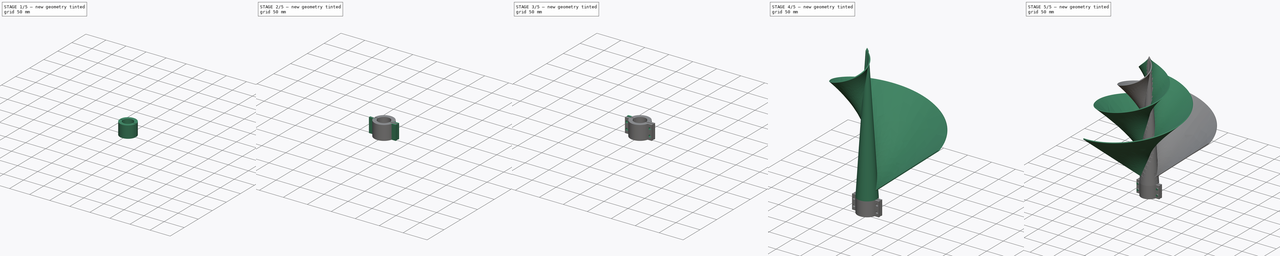
[diagram: build sequence overview — one tinted view per stage of 5, left to right]
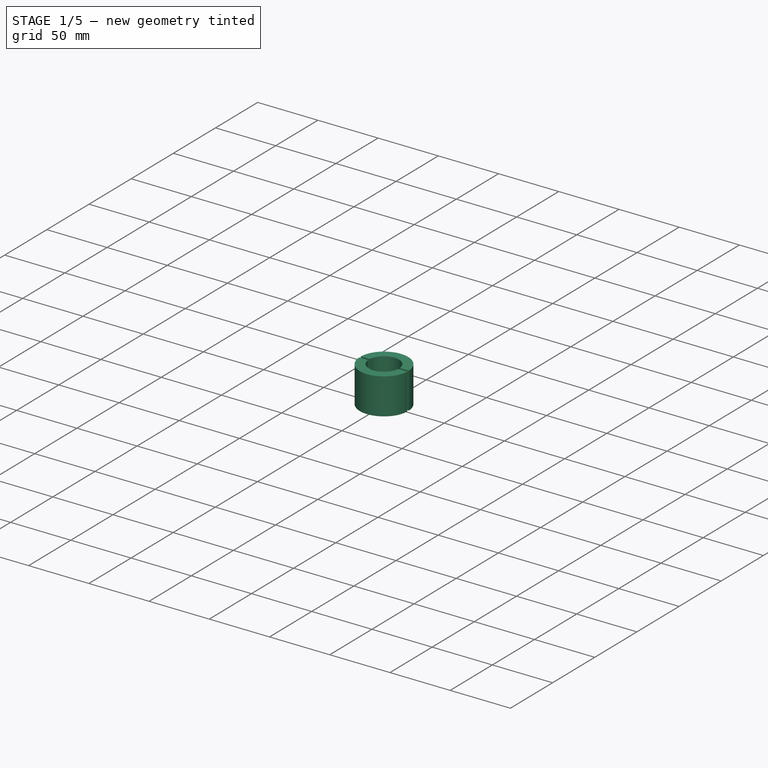
[diagram: stage 1 of 5 — iso view after this stage's code; geometry added in this stage tinted green]
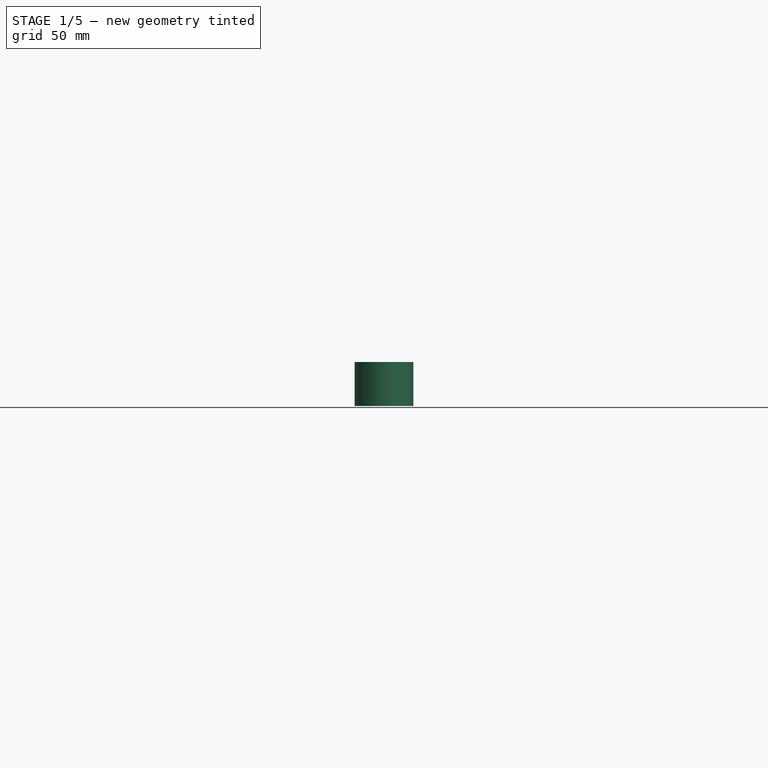
[diagram: stage 1 of 5 — front view after this stage's code; geometry added in this stage tinted green]
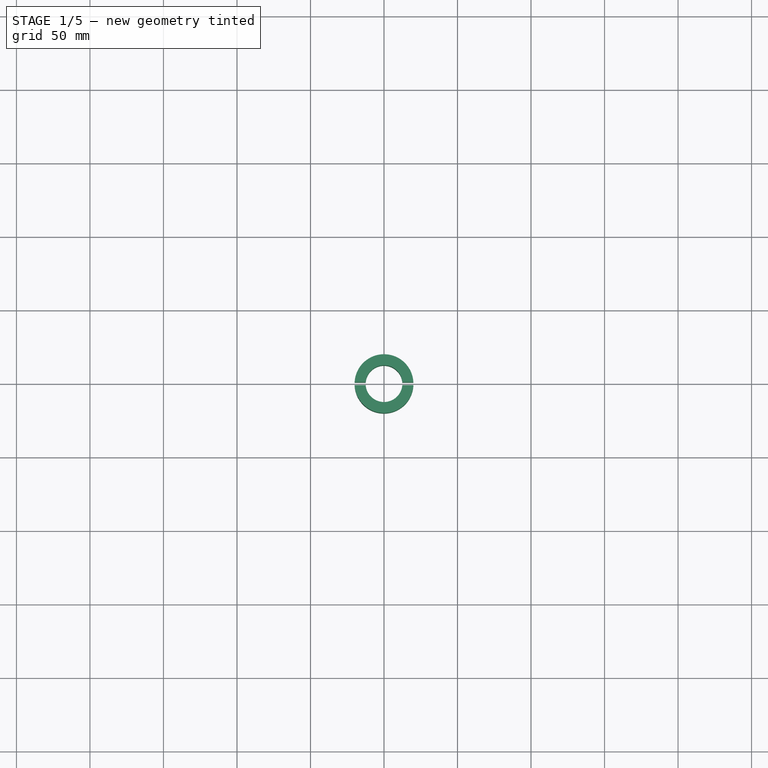
[diagram: stage 1 of 5 — top view after this stage's code; geometry added in this stage tinted green]
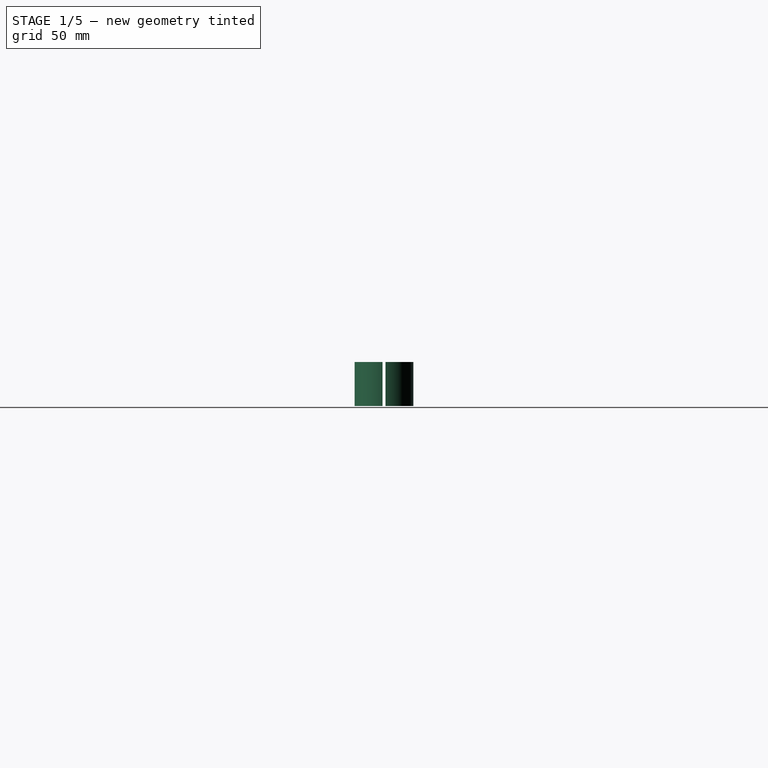
[diagram: stage 1 of 5 — right view after this stage's code; geometry added in this stage tinted green]
FCSTD DOCUMENT  (FreeCAD 0.20R29410 (Git))
Label: MODELO TURBINA FREECAD
License: All rights reserved
LicenseURL: http://en.wikipedia.org/wiki/All_rights_reserved
objects: Sketcher::SketchObject×8, Part::FeaturePython×5, Part::Extrusion×5, Part::RuledSurface×4, Part::Sweep×2, Part::Cut×2, Part::MultiFuse×2, Part::Helix×1, Part::Offset×1, Part::Fillet×1, Part::Face×1
note: 32 computed .brp shape members not serialized (recipe doc carries the construction recipe); baked Part::Feature solids carry a one-line shape summary decoded from their .brp

FEATURE [Part::FeaturePython] Tube  # WARN: FeaturePython — macro-defined, semantics opaque (R4)
  AttacherType = Attacher::AttachEngine3D
  Height = 30
  InnerRadius = 12.5
  OuterRadius = 20
  Placement = pos=(0,0,-155.86) rot=(0,0,1;0rad)
FEATURE [Sketcher::SketchObject] Sketch
  ExternalGeometry = -> [Tube]
  FullyConstrained = true
  Placement = pos=(0,0,-140.86) rot=(0,0,1;0rad)
  sketch-geometry (5):
    g0: LineSegment StartX=0 StartY=0 StartZ=0 EndX=0 EndY=-1 EndZ=0
    g1: LineSegment StartX=0 StartY=-1 StartZ=0 EndX=12 EndY=-1 EndZ=0
    g2: LineSegment StartX=12 StartY=-1 StartZ=0 EndX=20.5 EndY=-1 EndZ=0
    g3: LineSegment StartX=20.5 StartY=-1 StartZ=0 EndX=20.5 EndY=1 EndZ=0
    g4: LineSegment StartX=20.5 StartY=1 StartZ=0 EndX=12 EndY=1 EndZ=0
  constraints (15):
    c: Coincident(g0,g-4)
    c: Vertical(g0,g0)
    c: DistanceY(g0,g0) = 1
    c: Coincident(g1,g0)
    c: Horizontal(g1)
    c: DistanceX(g0,g1) = 12
    c: Coincident(g2,g1)
    c: Horizontal(g2)
    c: DistanceX(g1,g2) = 8.5
    c: Coincident(g3,g2)
    c: Vertical(g2,g3)
    c: DistanceY(g2,g3) = 2
    c: Coincident(g4,g3)
    c: Horizontal(g4)
    c: Vertical(g1,g4)
FEATURE [Part::RuledSurface] Ruled_Surface001
  Curve1 = -> Sketch [Edge5]
  Curve2 = -> Sketch [Edge3]
  Orientation = 0
FEATURE [Part::Extrusion] Extrude
  Base = -> Ruled_Surface001
  Dir = (0,0,1)
  DirMode = 0
  FaceMakerClass = Part::FaceMakerBullseye
  LengthFwd = 30
  LengthRev = 0
  Solid = true
  Symmetric = true
FEATURE [Part::FeaturePython] Array003  # Draft array (typed FeaturePython)
  AlwaysSyncPlacement = false
  Angle = 360
  ArrayType = 1
  Axis = (0,0,1)
  Base = -> Extrude
  Center = (0,0,0)
  Count = 2
  ExpandArray = false
  Fuse = true
  IntervalAxis = (0,0,0)
  IntervalX = (50,0,0)
  IntervalY = (0,50,0)
  IntervalZ = (0,0,50)
  NumberCircles = 3
  NumberPolar = 2
  NumberX = 2
  NumberY = 2
  NumberZ = 1
  PlacementList = 2 placements: [(0,0,0),(0,0,0)]
  RadialDistance = 50
  ScaleList = (2) [(1,1,1),(1,1,1)]
  Symmetry = 1
  TangentialDistance = 25
FEATURE [Part::Cut] Cut
  Base = -> Tube
  Tool = -> Array003
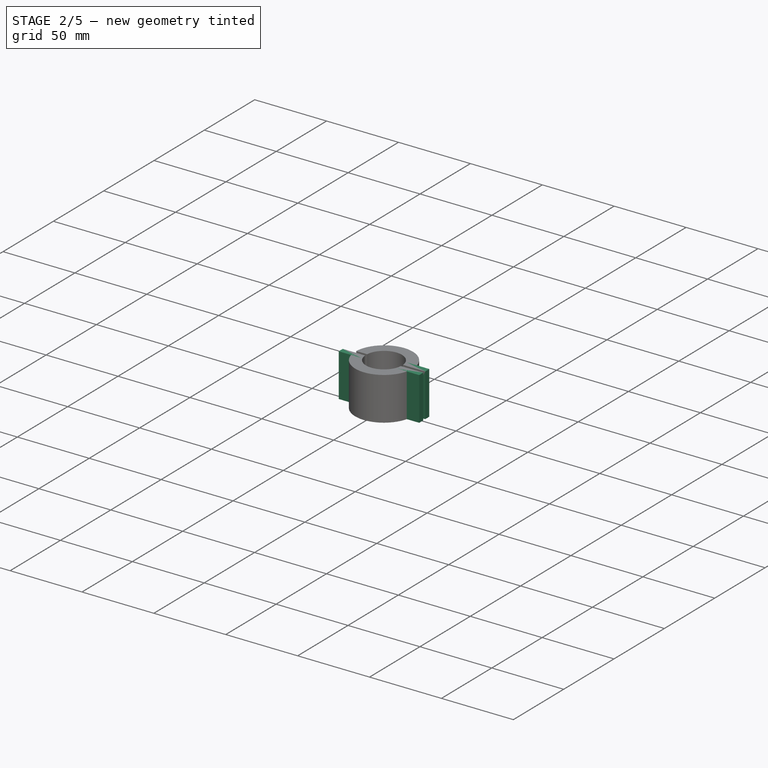
[diagram: stage 2 of 5 — iso view after this stage's code; geometry added in this stage tinted green]
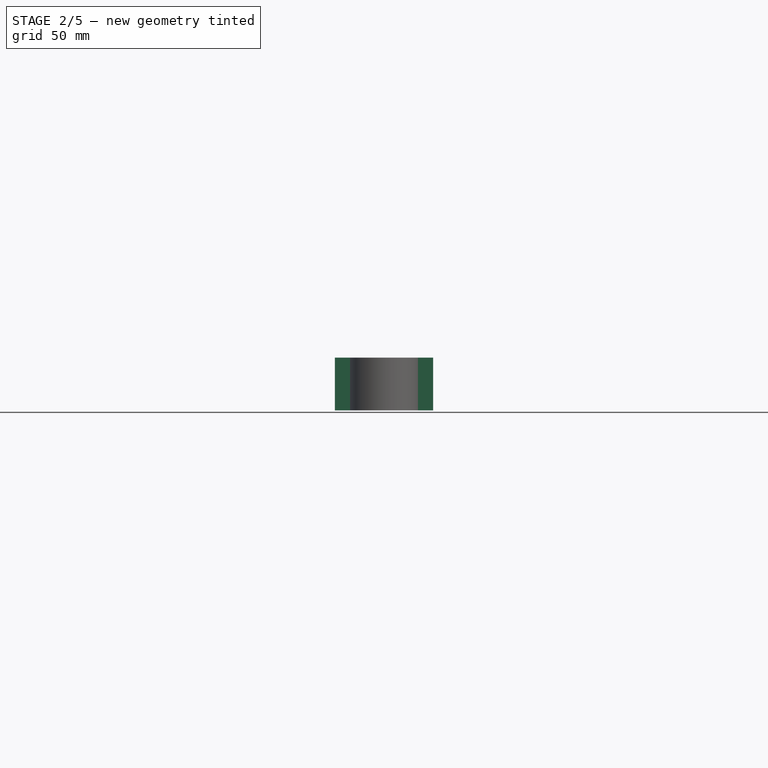
[diagram: stage 2 of 5 — front view after this stage's code; geometry added in this stage tinted green]
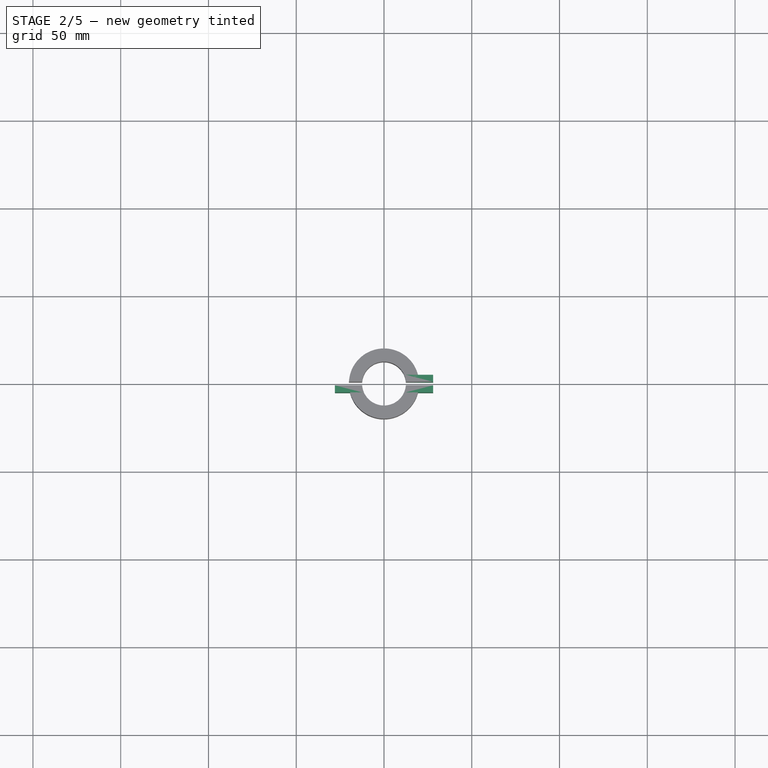
[diagram: stage 2 of 5 — top view after this stage's code; geometry added in this stage tinted green]
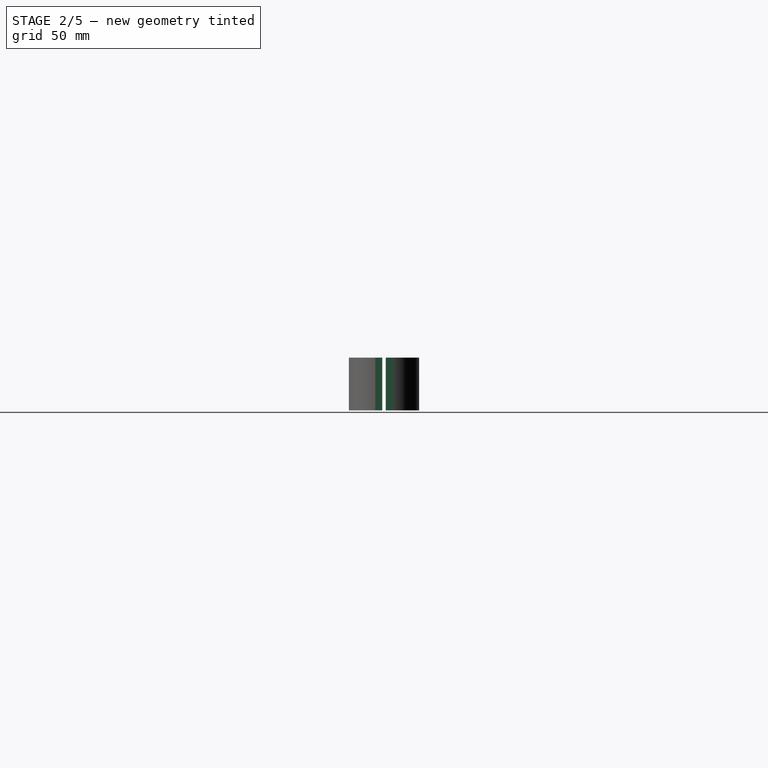
[diagram: stage 2 of 5 — right view after this stage's code; geometry added in this stage tinted green]
FEATURE [Sketcher::SketchObject] Sketch006
  ExternalGeometry = -> [Tube]
  FullyConstrained = true
  Placement = pos=(0,0,-140.86) rot=(0,0,1;0rad)
  sketch-geometry (5):
    g0: LineSegment StartX=0 StartY=0 StartZ=0 EndX=0 EndY=-1 EndZ=0
    g1: LineSegment StartX=12.5 StartY=-1 StartZ=0 EndX=28 EndY=-1 EndZ=0
    g2: LineSegment StartX=28 StartY=1 StartZ=0 EndX=12.5 EndY=1 EndZ=0
    g3: LineSegment StartX=28 StartY=5 StartZ=0 EndX=12.5 EndY=5 EndZ=0
    g4: LineSegment StartX=12.5 StartY=-5 StartZ=0 EndX=28 EndY=-5 EndZ=0
  constraints (19):
    c: Coincident(g0,g-1)
    c: PointOnObject(g0,g-2)
    c: DistanceY(g0,g0) = 1
    c: Horizontal(g1)
    c: Horizontal(g2)
    c: Horizontal(g0,g1)
    c: DistanceY(g1,g2) = 2
    c: DistanceX(g0,g1) = 12.5
    c: Vertical(g1,g2)
    c: DistanceX(g1,g1) = 15.5
    c: Vertical(g1,g2)
    c: Horizontal(g3)
    c: Horizontal(g4)
    c: Vertical(g2,g3)
    c: Vertical(g2,g3)
    c: Vertical(g1,g4)
    c: Vertical(g1,g4)
    c: DistanceY(g2,g3) = 4
    c: DistanceY(g4,g1) = 4
FEATURE [Part::RuledSurface] Ruled_Surface002
  Curve1 = -> Sketch006 [Edge5]
  Curve2 = -> Sketch006 [Edge2]
  Orientation = 0
FEATURE [Part::RuledSurface] Ruled_Surface003
  Curve1 = -> Sketch006 [Edge3]
  Curve2 = -> Sketch006 [Edge4]
  Orientation = 0
FEATURE [Part::Extrusion] Extrude001
  Base = -> Ruled_Surface003
  Dir = (0,0,1)
  DirMode = 0
  FaceMakerClass = Part::FaceMakerBullseye
  LengthFwd = 30
  LengthRev = 0
  Solid = false
  Symmetric = true
FEATURE [Part::Extrusion] Extrude002
  Base = -> Ruled_Surface002
  Dir = (0,0,1)
  DirMode = 0
  FaceMakerClass = Part::FaceMakerBullseye
  LengthFwd = 30
  LengthRev = 0
  Solid = false
  Symmetric = true
FEATURE [Part::FeaturePython] Array002  # Draft array (typed FeaturePython)
  AlwaysSyncPlacement = false
  Angle = 360
  ArrayType = 1
  Axis = (0,0,1)
  Base = -> Extrude001
  Center = (0,0,0)
  Count = 2
  ExpandArray = false
  Fuse = true
  IntervalAxis = (0,0,0)
  IntervalX = (50,0,0)
  IntervalY = (0,50,0)
  IntervalZ = (0,0,50)
  NumberCircles = 3
  NumberPolar = 2
  NumberX = 2
  NumberY = 2
  NumberZ = 1
  PlacementList = 2 placements: [(0,0,0),(0,0,0)]
  RadialDistance = 50
  ScaleList = (2) [(1,1,1),(1,1,1)]
  Symmetry = 1
  TangentialDistance = 25
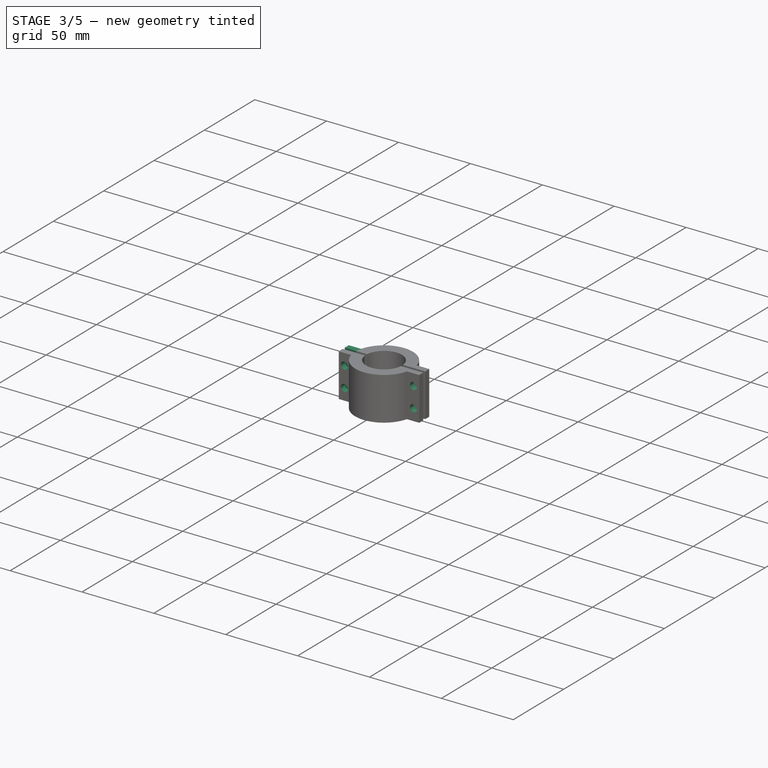
[diagram: stage 3 of 5 — iso view after this stage's code; geometry added in this stage tinted green]
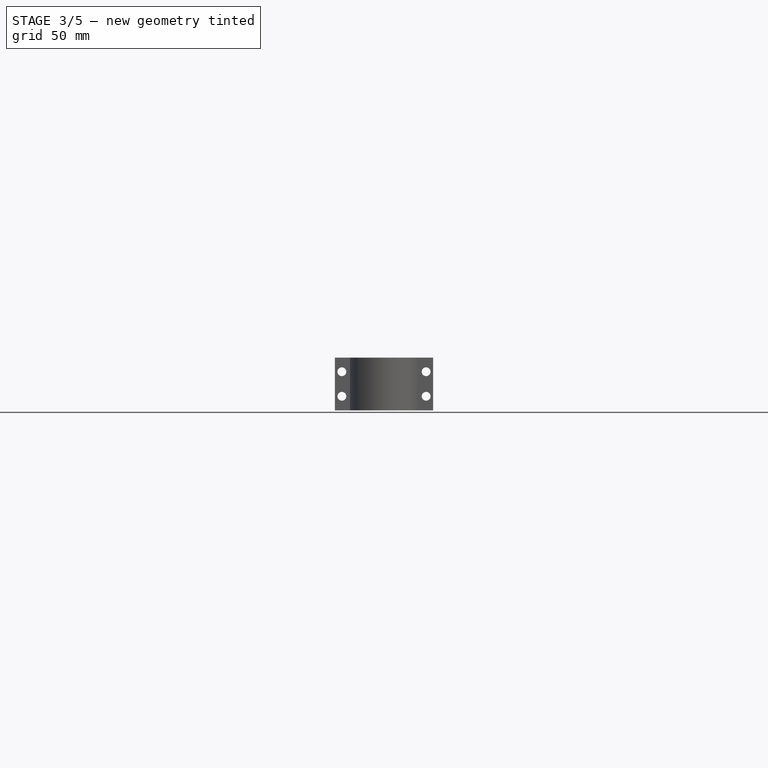
[diagram: stage 3 of 5 — front view after this stage's code; geometry added in this stage tinted green]
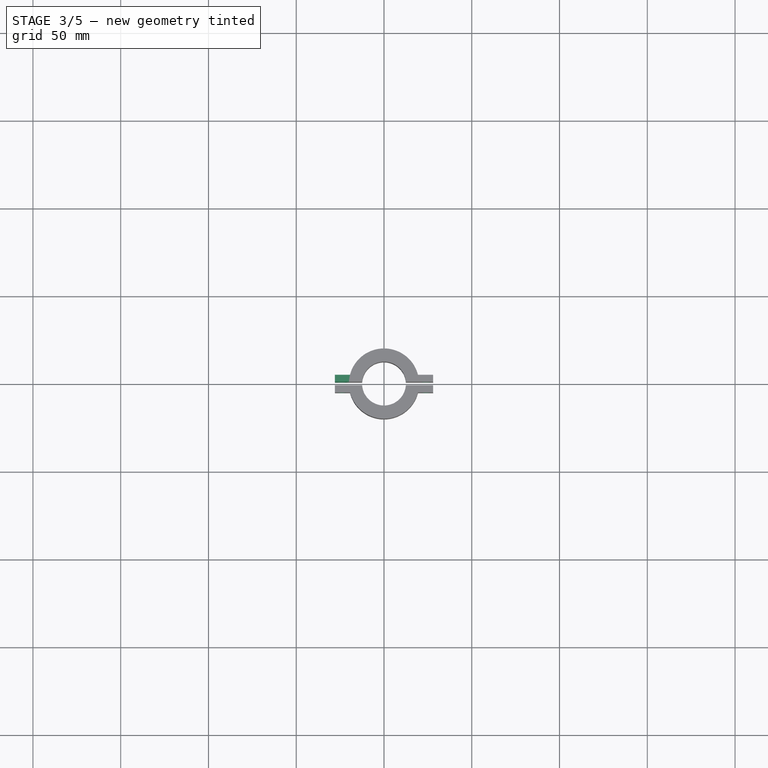
[diagram: stage 3 of 5 — top view after this stage's code; geometry added in this stage tinted green]
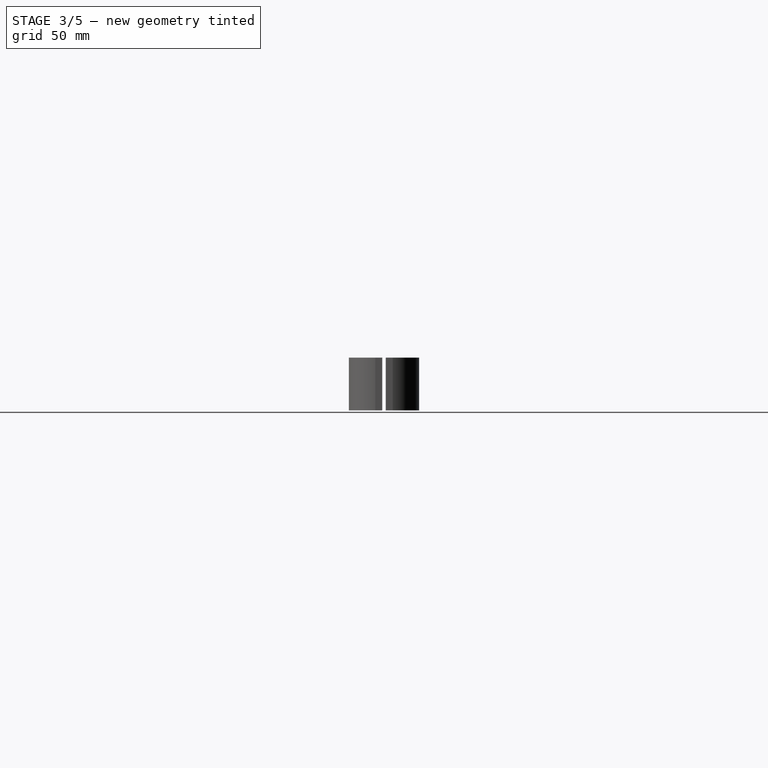
[diagram: stage 3 of 5 — right view after this stage's code; geometry added in this stage tinted green]
FEATURE [Part::FeaturePython] Array001  # Draft array (typed FeaturePython)
  AlwaysSyncPlacement = false
  Angle = 360
  ArrayType = 1
  Axis = (0,0,1)
  Base = -> Extrude002
  Center = (0,0,0)
  Count = 2
  ExpandArray = false
  Fuse = true
  IntervalAxis = (0,0,0)
  IntervalX = (50,0,0)
  IntervalY = (0,50,0)
  IntervalZ = (0,0,50)
  NumberCircles = 3
  NumberPolar = 2
  NumberX = 2
  NumberY = 2
  NumberZ = 1
  PlacementList = 2 placements: [(0,0,0),(0,0,0)]
  RadialDistance = 50
  ScaleList = (2) [(1,1,1),(1,1,1)]
  Symmetry = 1
  TangentialDistance = 25
FEATURE [Part::MultiFuse] Fusion
  Shapes = -> [Cut,Array002,Array001]
FEATURE [Sketcher::SketchObject] Sketch007
  ExternalGeometry = -> [Fusion]
  FullyConstrained = true
  Placement = pos=(0,0,0) rot=(1,0,0;1.5708rad)
  sketch-geometry (9):
    g0: GeomPoint X=-24 Y=-125.86 Z=0
    g1: GeomPoint X=-24 Y=-133.86 Z=0
    g2: GeomPoint X=-24 Y=-147.86 Z=0
    g3: GeomPoint X=24 Y=-133.86 Z=0
    g4: GeomPoint X=24 Y=-147.86 Z=0
    g5: Circle CenterX=-24 CenterY=-133.86 CenterZ=0 NormalX=0 NormalY=0 NormalZ=1 AngleXU=0 Radius=2.5
    g6: Circle CenterX=-24 CenterY=-147.86 CenterZ=0 NormalX=0 NormalY=0 NormalZ=1 AngleXU=0 Radius=2.5
    g7: Circle CenterX=24 CenterY=-133.86 CenterZ=0 NormalX=0 NormalY=0 NormalZ=1 AngleXU=0 Radius=2.5
    g8: Circle CenterX=24 CenterY=-147.86 CenterZ=0 NormalX=0 NormalY=0 NormalZ=1 AngleXU=0 Radius=2.5
  constraints (18):
    c: Horizontal(g-3,g0)
    c: DistanceX(g-3,g0) = 4
    c: Vertical(g0,g1)
    c: DistanceY(g1,g0) = 8
    c: Vertical(g0,g2)
    c: DistanceY(g2,g1) = 14
    c: DistanceX(g3,g-9) = 4
    c: Vertical(g3,g4)
    c: DistanceY(g3,g-9) = 8
    c: DistanceY(g4,g3) = 14
    c: Coincident(g5,g1)
    c: Coincident(g6,g2)
    c: Coincident(g7,g3)
    c: Coincident(g8,g4)
    c: Diameter(g5) = 5
    c: Diameter(g6) = 5
    c: Diameter(g7) = 5
    c: Diameter(g8) = 5
FEATURE [Part::Face] Face
  FaceMakerClass = Part::FaceMakerBullseye
  Sources = -> [Sketch007]
FEATURE [Part::Extrusion] Extrude003
  Base = -> Face
  Dir = (0,1,0)
  DirMode = 0
  FaceMakerClass = Part::FaceMakerBullseye
  LengthFwd = 15
  LengthRev = 0
  Solid = true
  Symmetric = true
FEATURE [Part::Cut] Cut001
  Base = -> Fusion
  Tool = -> Extrude003
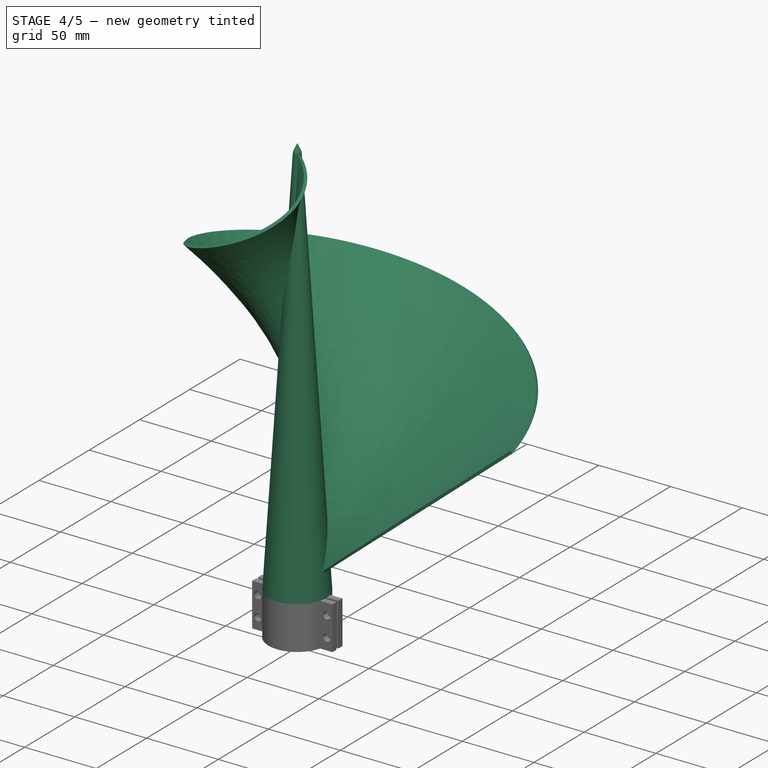
[diagram: stage 4 of 5 — iso view after this stage's code; geometry added in this stage tinted green]
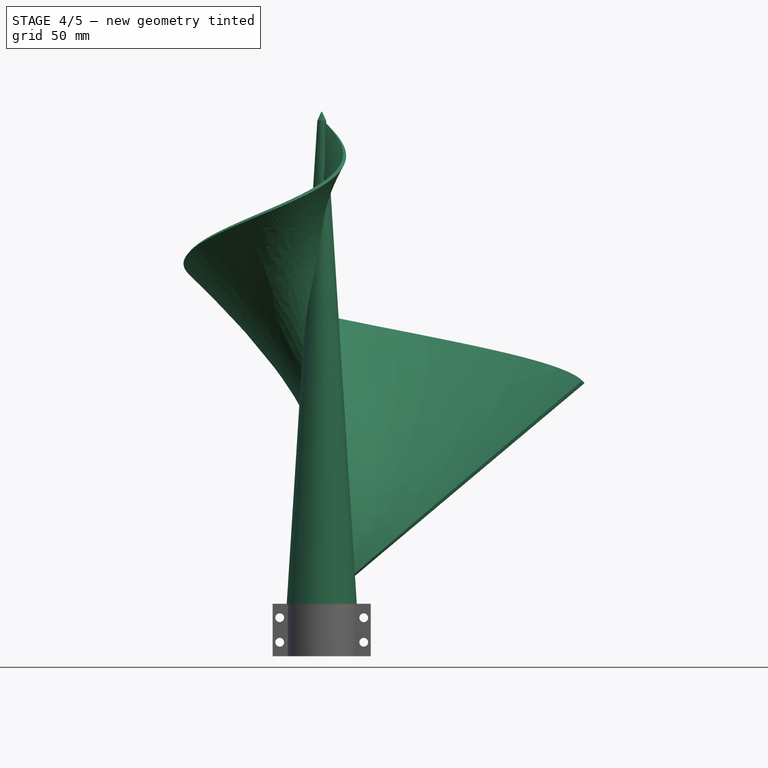
[diagram: stage 4 of 5 — front view after this stage's code; geometry added in this stage tinted green]
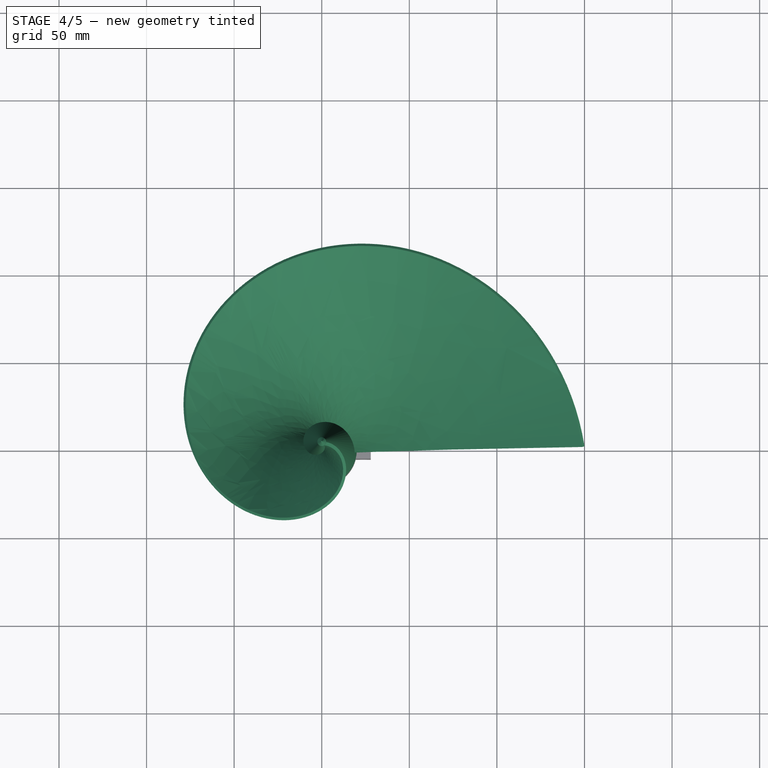
[diagram: stage 4 of 5 — top view after this stage's code; geometry added in this stage tinted green]
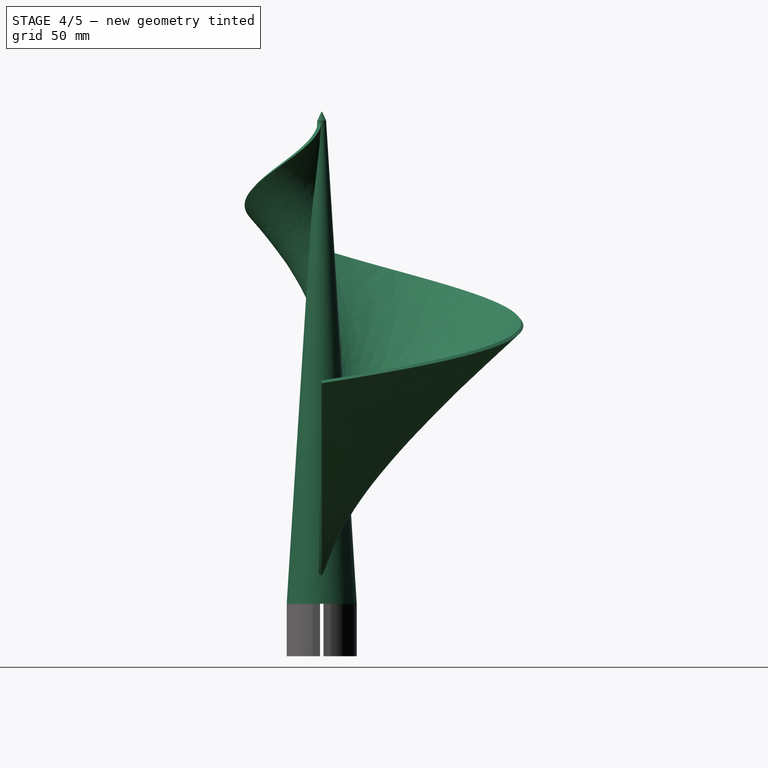
[diagram: stage 4 of 5 — right view after this stage's code; geometry added in this stage tinted green]
FEATURE [Part::Helix] Helix  label="Hélice"
  Angle = -44.82
  AttacherType = Attacher::AttachEngine3D
  Height = 150
  LocalCoord = 0
  Pitch = 150
  Radius = 150
  SegmentLength = 0
  Style = 1
FEATURE [Sketcher::SketchObject] Sketch001
  ExternalGeometry = -> [Helix]
  FullyConstrained = true
  Placement = pos=(0,0,0) rot=(1,0,0;1.5708rad)
  sketch-geometry (2):
    g0: LineSegment StartX=0 StartY=150 StartZ=0 EndX=0 EndY=-125.865 EndZ=0
    g1: LineSegment StartX=150 StartY=0 StartZ=0 EndX=0 EndY=-125.865 EndZ=0
  constraints (6):
    c: PointOnObject(g0,g-2)
    c: Horizontal(g0,g-3)
    c: Vertical(g0)
    c: Coincident(g1,g-4)
    c: Coincident(g1,g0)
    c: Angle(g1,g0) = 0.872665
FEATURE [Part::RuledSurface] Ruled_Surface
  Curve1 = -> Sketch001 [Edge1]
  Curve2 = -> Helix [Edge1]
  Orientation = 0
FEATURE [Part::Offset] Offset
  Fill = true
  Intersection = false
  Join = 0
  Mode = 0
  SelfIntersection = false
  Source = -> Ruled_Surface
  Value = 2
FEATURE [Sketcher::SketchObject] Sketch002
  FullyConstrained = true
  Placement = pos=(0,0,-125.86) rot=(0,0,1;0rad)
  sketch-geometry (1):
    g0: Circle CenterX=0 CenterY=0 CenterZ=0 NormalX=0 NormalY=0 NormalZ=1 AngleXU=0 Radius=20
  constraints (2):
    c: Coincident(g0,g-1)
    c: Diameter(g0) = 40
FEATURE [Sketcher::SketchObject] Sketch003
  FullyConstrained = true
  Placement = pos=(0,0,150) rot=(0,0,1;0rad)
  sketch-geometry (1):
    g0: Circle CenterX=0 CenterY=0 CenterZ=0 NormalX=0 NormalY=0 NormalZ=1 AngleXU=0 Radius=2.5
  constraints (2):
    c: Coincident(g0,g-1)
    c: Diameter(g0) = 5
FEATURE [Part::Sweep] Sweep
  Frenet = true
  Sections = -> [Sketch002,Sketch003]
  Solid = true
  Spine = -> Sketch001 [Edge1]
  Transition = 1
FEATURE [Sketcher::SketchObject] Sketch004
  FullyConstrained = true
  Placement = pos=(0,0,225) rot=(0,0,1;0rad)
  sketch-geometry (1):
    g0: Circle CenterX=0 CenterY=0 CenterZ=0 NormalX=0 NormalY=0 NormalZ=1 AngleXU=0 Radius=0.25
  constraints (2):
    c: Coincident(g0,g-1)
    c: Diameter(g0) = 0.5
FEATURE [Sketcher::SketchObject] Sketch005
  ExternalGeometry = -> [Sketch001,Sketch004]
  FullyConstrained = false
  Placement = pos=(0,0,0) rot=(1,0,0;1.5708rad)
  sketch-geometry (1):
    g0: LineSegment StartX=0 StartY=220 StartZ=0 EndX=0 EndY=225 EndZ=0
  constraints (1):
    c: Vertical(g0,g0)
FEATURE [Part::Sweep] Sweep001
  Frenet = true
  Sections = -> [Sketch003,Sketch004]
  Solid = true
  Spine = -> Sketch005 [Edge1]
  Transition = 1
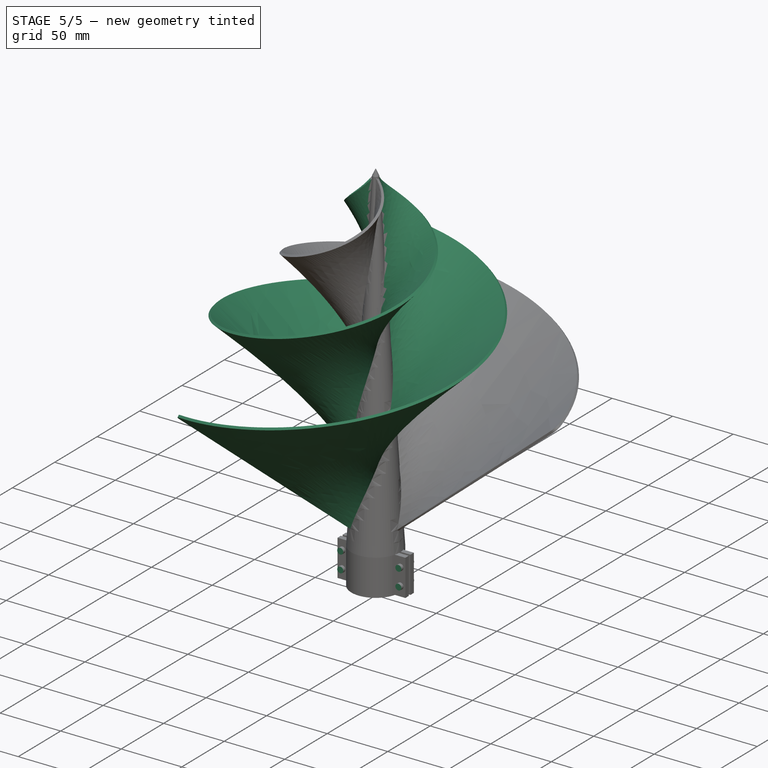
[diagram: stage 5 of 5 — iso view after this stage's code; geometry added in this stage tinted green]
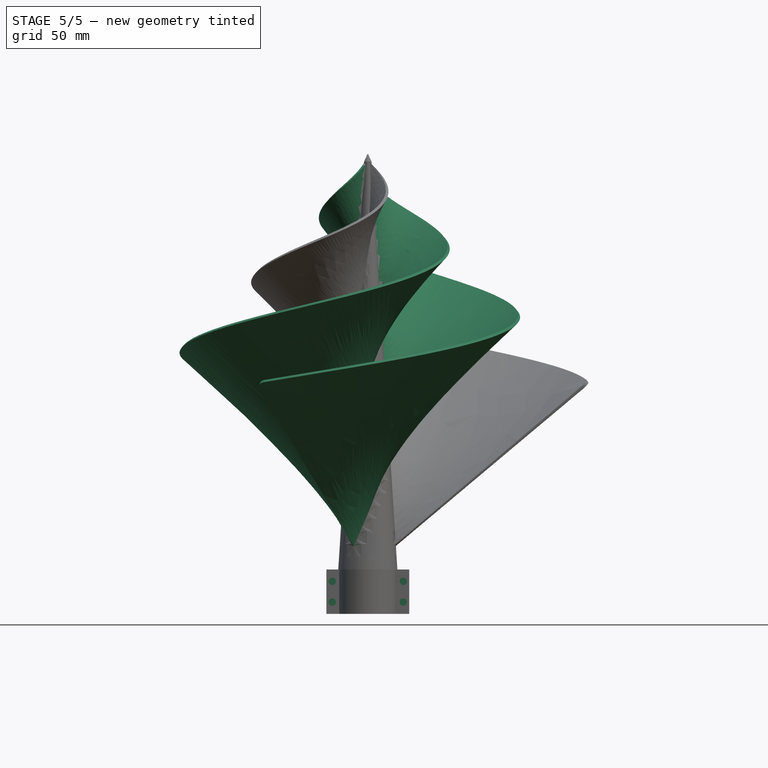
[diagram: stage 5 of 5 — front view after this stage's code; geometry added in this stage tinted green]
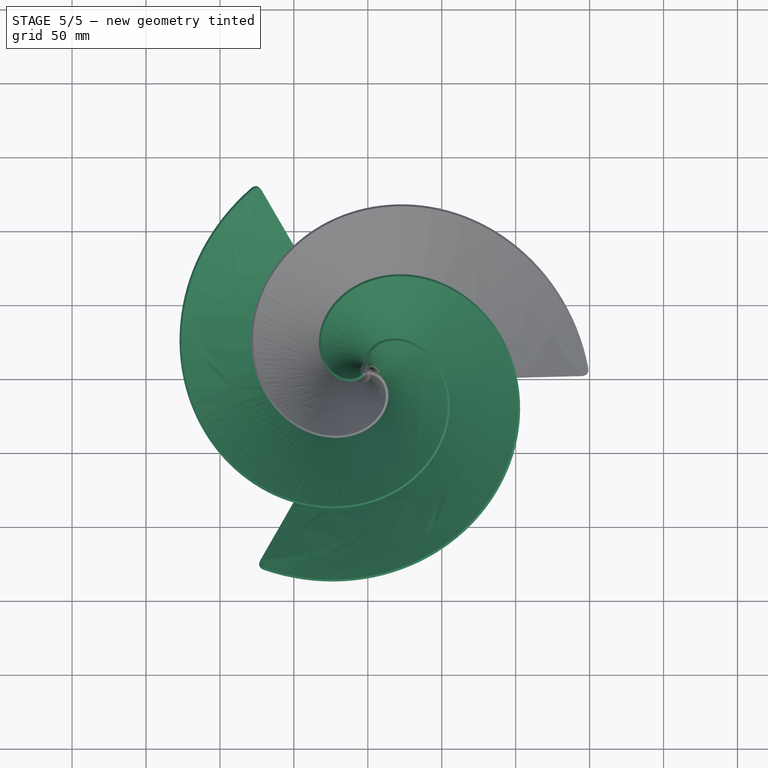
[diagram: stage 5 of 5 — top view after this stage's code; geometry added in this stage tinted green]
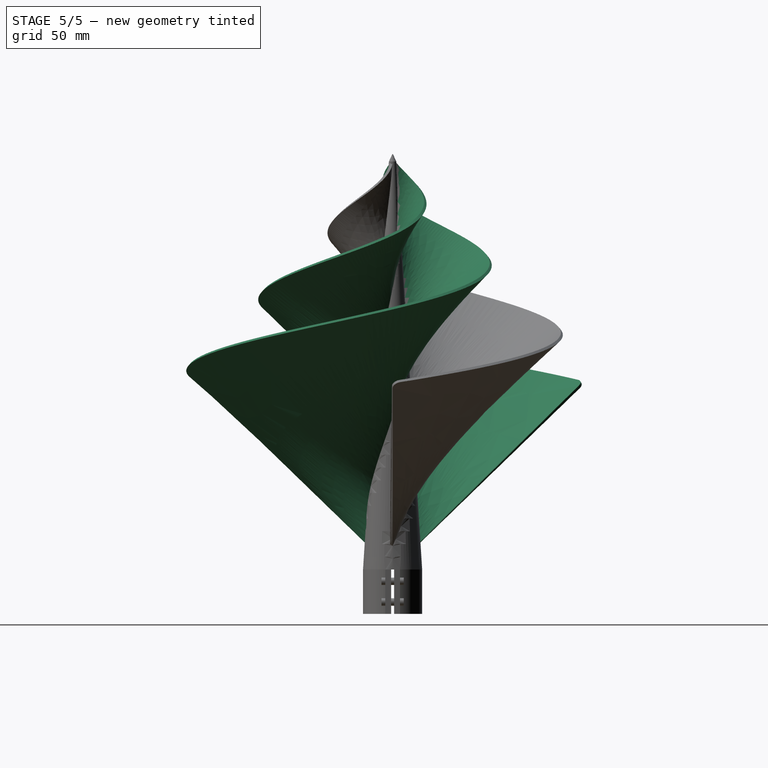
[diagram: stage 5 of 5 — right view after this stage's code; geometry added in this stage tinted green]
FEATURE [Part::Fillet] Fillet
  Base = -> Offset
  Edges = 1 edges r=5: [Edge8]
FEATURE [Part::FeaturePython] Array  # Draft array (typed FeaturePython)
  AlwaysSyncPlacement = false
  Angle = 360
  ArrayType = 1
  Axis = (0,0,1)
  Base = -> Fillet
  Center = (0,0,0)
  Count = 3
  ExpandArray = false
  Fuse = true
  IntervalAxis = (0,0,0)
  IntervalX = (50,0,0)
  IntervalY = (0,50,0)
  IntervalZ = (0,0,50)
  NumberCircles = 3
  NumberPolar = 3
  NumberX = 2
  NumberY = 2
  NumberZ = 1
  PlacementList = 3 placements: [(0,0,0),(0,0,0),(0,0,0)]
  RadialDistance = 50
  ScaleList = (3) [(1,1,1),(1,1,1),(1,1,1)]
  Symmetry = 1
  TangentialDistance = 25
FEATURE [Part::Extrusion] Extrude004
  Base = -> Face
  Dir = (0,1,0)
  DirMode = 0
  FaceMakerClass = Part::FaceMakerBullseye
  LengthFwd = 15
  LengthRev = 0
  Solid = true
  Symmetric = true
FEATURE [Part::MultiFuse] Fusion001
  Shapes = -> [Cut001,Sweep001,Sweep,Array]
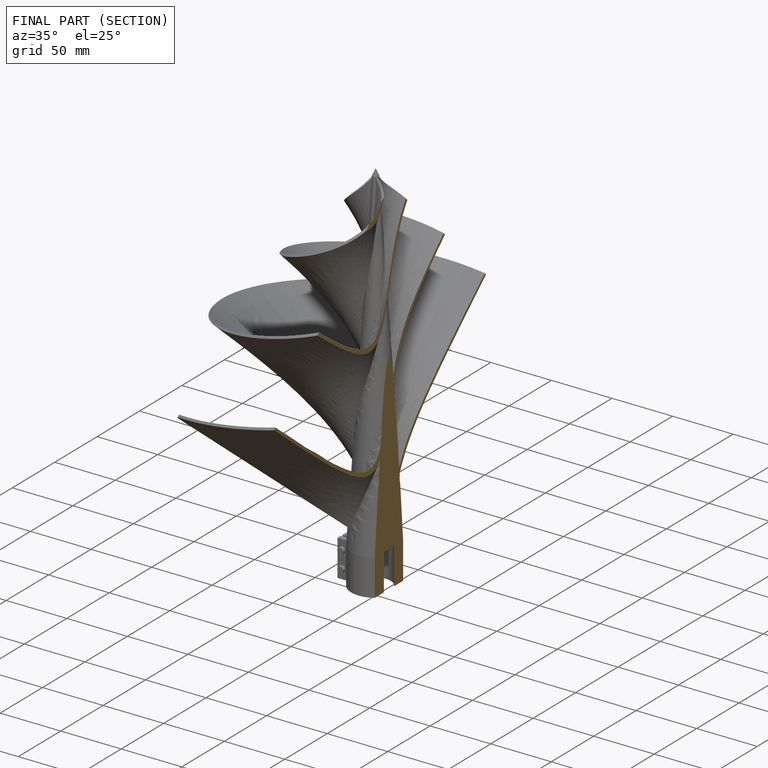
[diagram: finished part — half-section view (interior)]
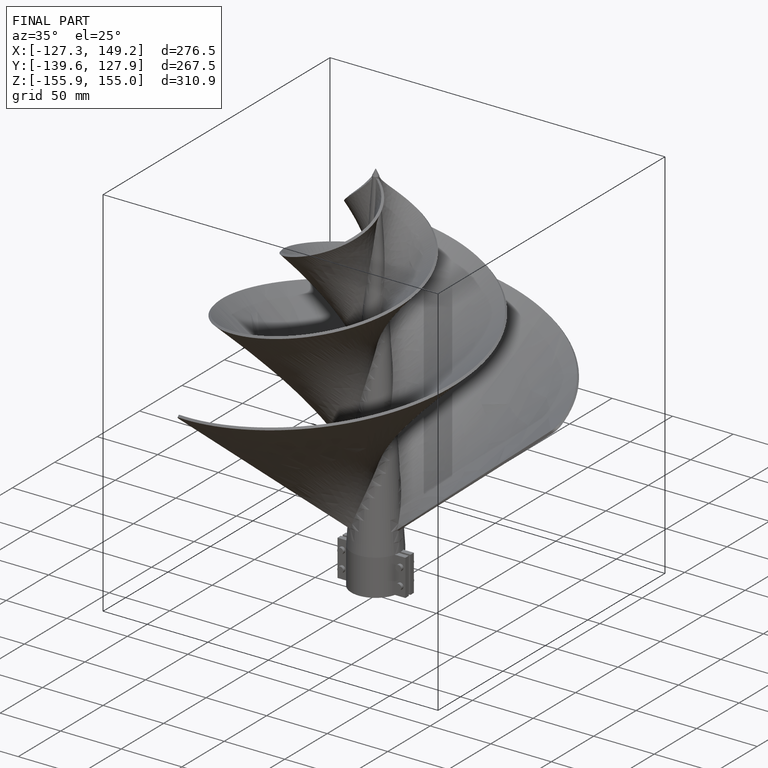
[diagram: finished part — iso view with bounding-box wireframe]
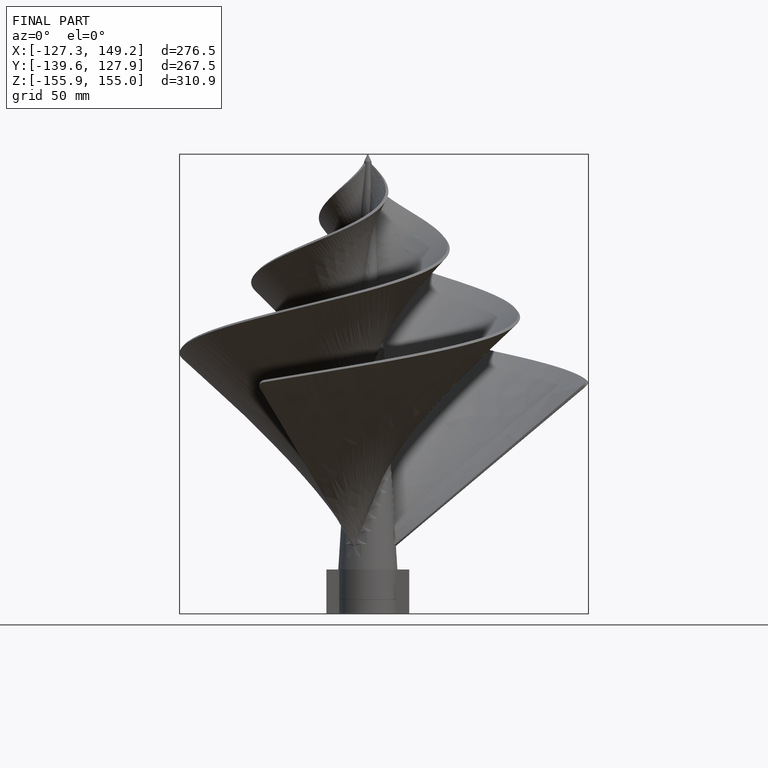
[diagram: finished part — front view with bounding-box wireframe]
